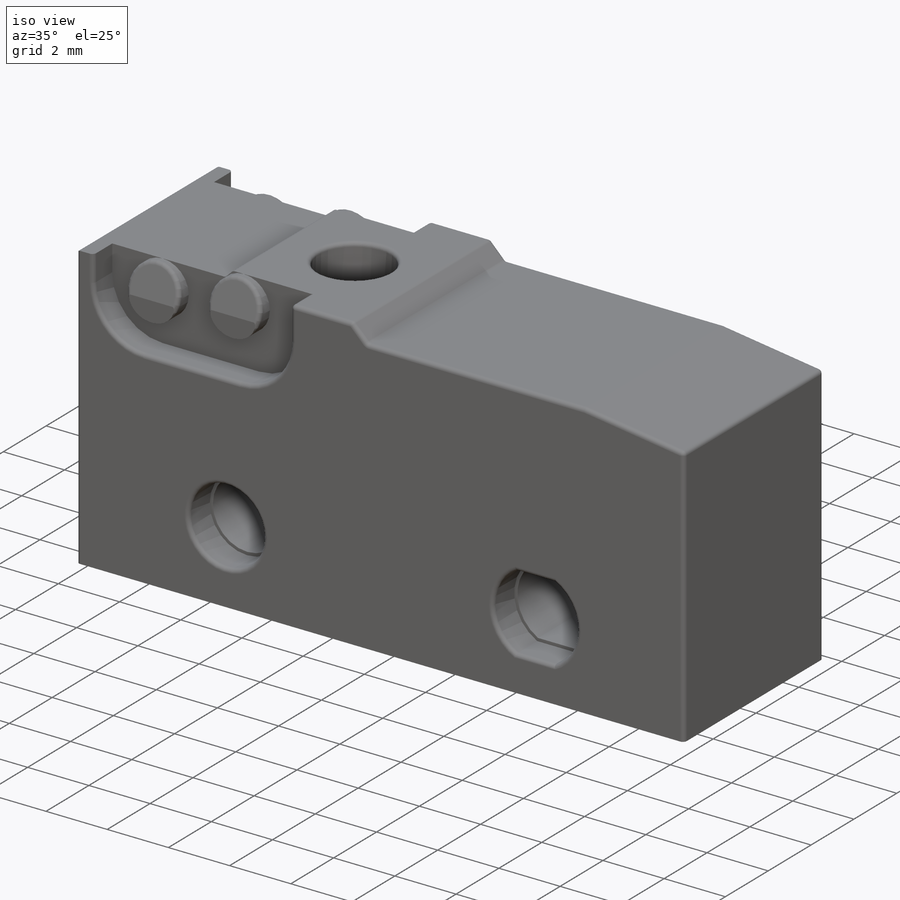
[diagram: iso view]
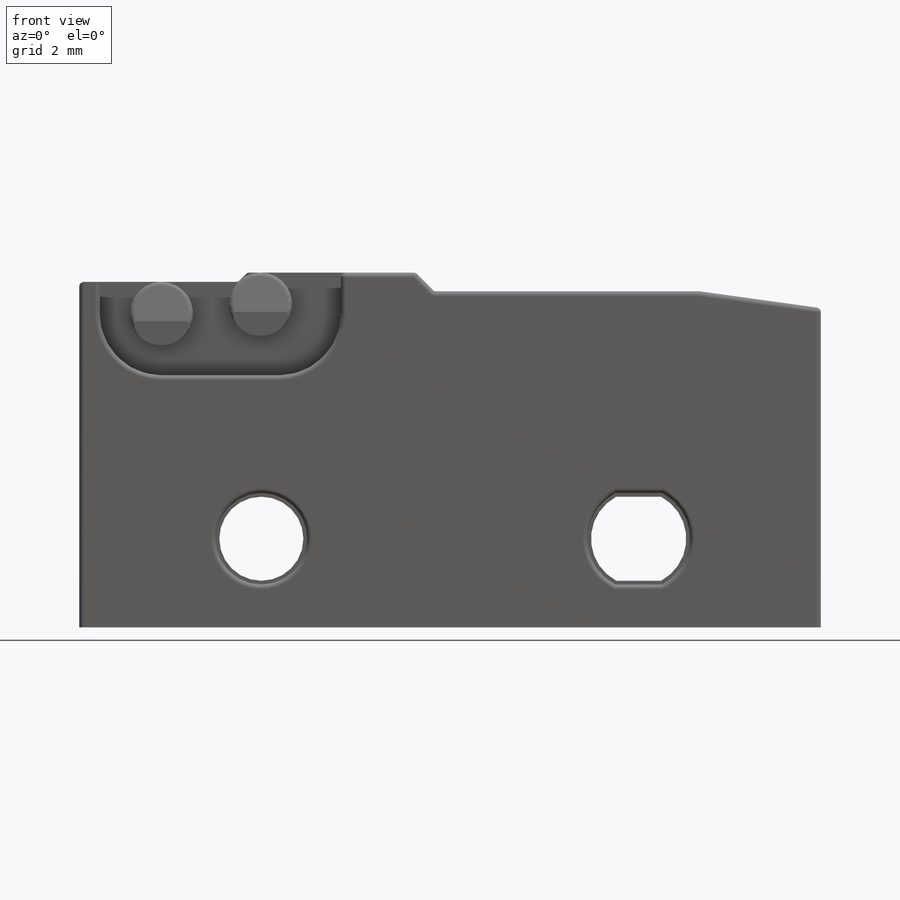
[diagram: front view]
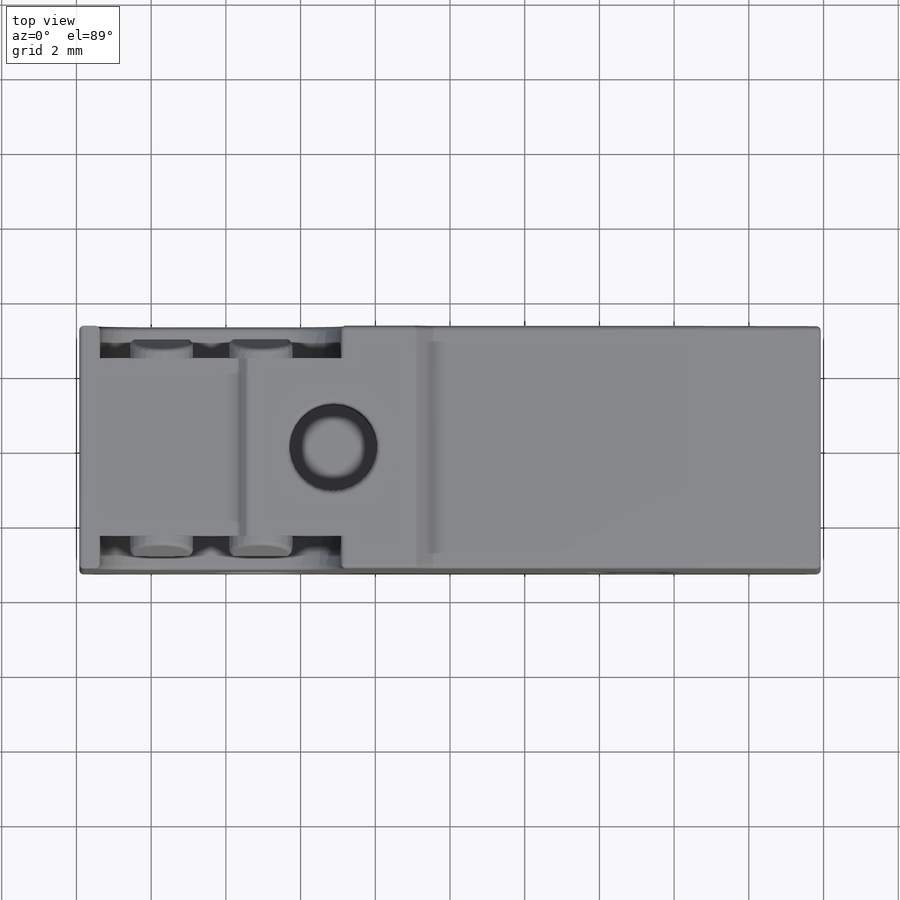
[diagram: top view]
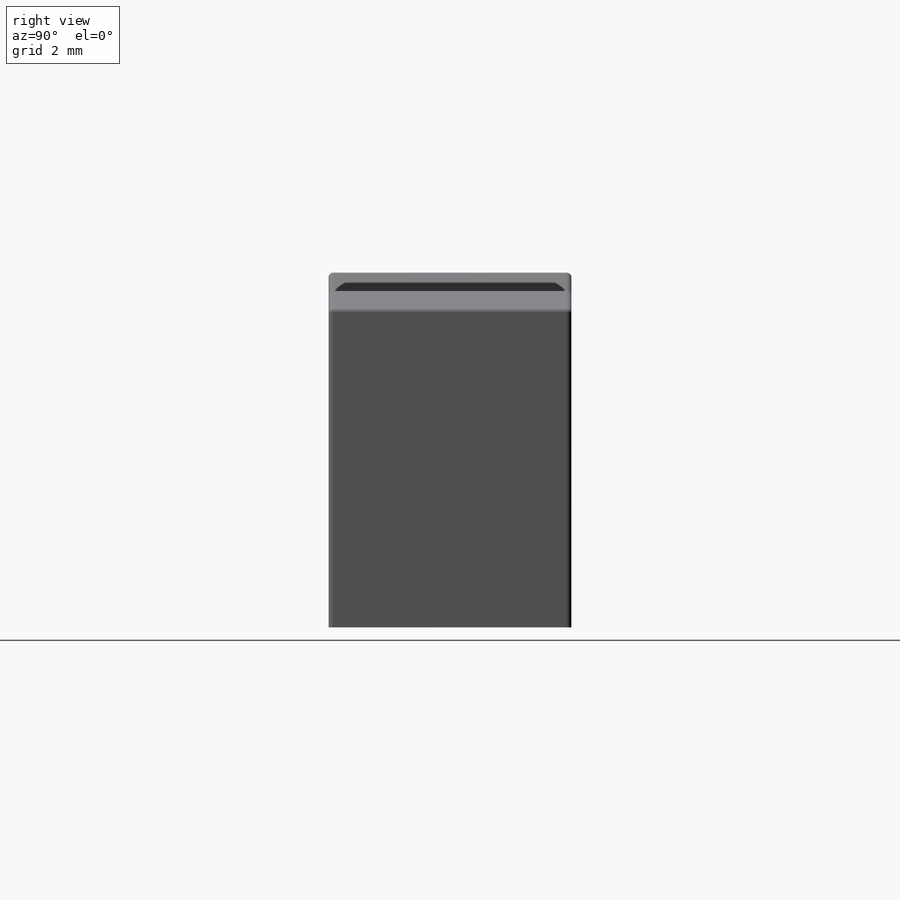
[diagram: right view]
SOLIDWORKS PART (.sldprt)
format: sldprt  version: not decoded by parser v0  size: 557,568 bytes
history: native  units: mm
features: sketch x11, cut_extrude x6, extrude x3, mirror x3, cut_revolve x2, material x1, chamfer x1, pattern_linear x1, fillet x1 (+16 scaffold rows collapsed)
feature tree (45):
  scaffold x16  (default folders/planes/origin — collapsed)
  material  "PE High Density"
  sketch  "Sketch2"  dims[D1=19.85mm D2=9.925mm D3=9.25mm]
  extrude  "Extrude1"  Depth=6.5mm
  sketch  "Sketch3"  dims[D1=2.25mm D2=2.55mm D3=2.375mm D4=2.375mm D5=4.875mm D6=4.875mm D7=2.25mm D8=1.125mm]
  cut_extrude  "Extrude2"  [1 undecoded]
  sketch  "Sketch4"  dims[D1=4.25mm D2=0.25mm D3=5.25mm]
  extrude  "Extrude3"  [1 undecoded]
  sketch  "Sketch5"  dims[c1.D1=0.25mm c1.D2=3.25mm c1.D3=0.45mm c1.D4=7.1mm c2.D4=135.0deg]
  cut_extrude  "Extrude4"  [1 undecoded]
  sketch  "Sketch6"  dims[D4=1.65mm D1=2.5mm D2=6.45mm D3=0.55mm]
  cut_extrude  "Extrude5"  Depth=0.875mm
  mirror  "Mirror1"
  chamfer  "Chamfer1"  Distance=0.25mm Angle=45deg
  sketch  "Sketch8"  dims[D1=1.7mm D2=1.7mm]
  extrude  "Extrude6"  Depth=0.525mm
  sketch  "Sketch9"  dims[D2=2.5mm D1=0.2mm]
  cut_revolve  "Cut-Revolve2"  Angle=15deg
  sketch  "Sketch10"  dims[D2=2.5mm D1=0.2mm]
  cut_revolve  "Cut-Revolve3"  Angle=15deg
  mirror  "Mirror3"
  sketch  "Sketch11"  dims[D2=2.35mm D1=2.3mm]
  cut_extrude  "Extrude7"  Depth=3mm
  sketch  "Sketch12"  dims[D1=0.5mm D2=1.425mm D3=2.85mm D4=0.25mm]
  cut_extrude  "Extrude8"  Depth=1mm
  pattern_linear  "LPattern1"  Count1=2 Count2=2 Spacing1=7.5mm Spacing2=7.5mm
  sketch  "Sketch13"  dims[D1=0.1mm]
  cut_extrude  "Extrude9"  Depth=1mm
  mirror  "Mirror4"
  fillet  "Fillet4"  Radius=0.125mm
decode coverage: 22 of 28 modeling features carry decoded parameters
note: 3 parameter values undecoded
summary: no parameter record found for 3 features
note: suppression state not decoded; provenance and decode notes live in map.json
